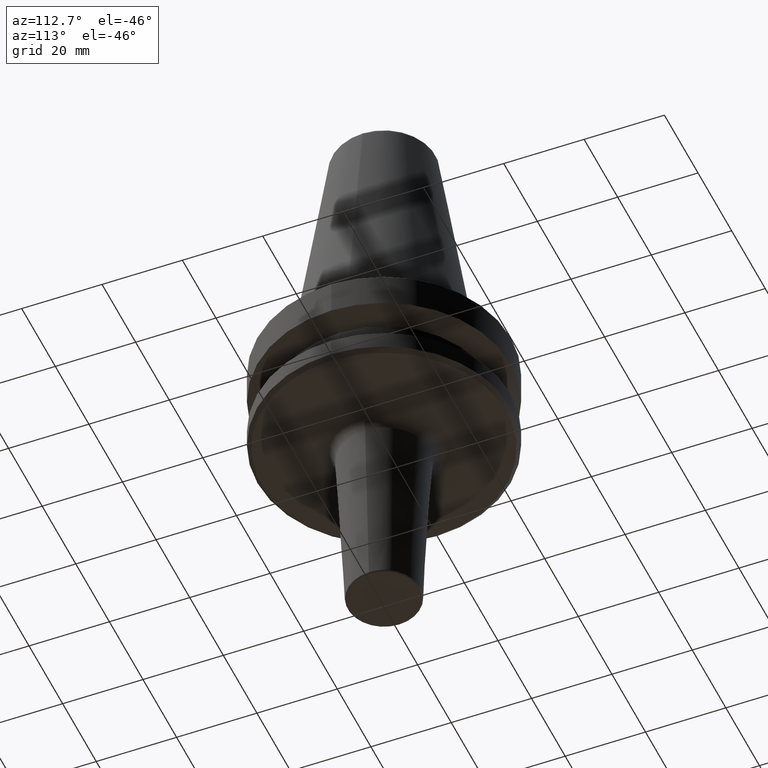
[diagram: clean part render]
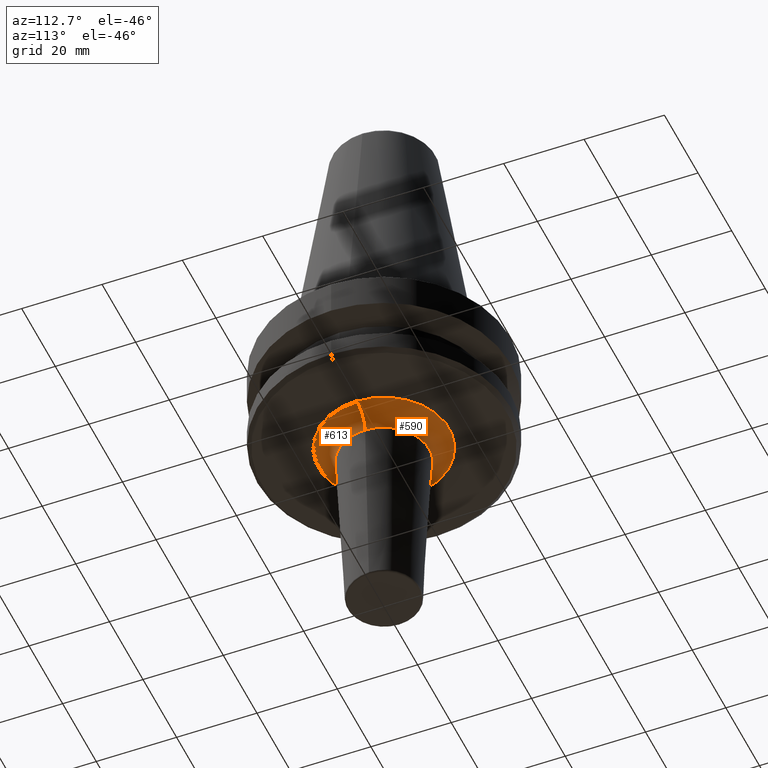
[diagram: same view with one multi-face feature highlighted, each face labeled with its STEP entity id]
A machine part, auxiliary view. The highlighted faces form ONE feature: a constant-radius fillet chain: 2 tangent blend faces with common blend radius 5 mm. The faces share edges in the B-rep.
Their STEP definitions:
[1] entity #590 (Torus):
#14 = CARTESIAN_POINT ( 'NONE',  ( 0.0000000000000000000, 0.0000000000000000000, -92.40000000000806300 ) ) ;
#58 = ORIENTED_EDGE ( 'NONE', *, *, #923, .F. ) ;
#75 = AXIS2_PLACEMENT_3D ( 'NONE', #14, #208, #462 ) ;
#115 = CIRCLE ( 'NONE', #962, 4.999999999999990200 ) ;
#116 = EDGE_CURVE ( 'NONE', #659, #471, #483, .T. ) ;
#168 = DIRECTION ( 'NONE',  ( 1.224646799147353200E-016, 1.000000000000000000, 0.0000000000000000000 ) ) ;
#208 = DIRECTION ( 'NONE',  ( -0.0000000000000000000, -0.0000000000000000000, 1.000000000000000000 ) ) ;
#218 = CIRCLE ( 'NONE', #262, 11.26248440423597500 ) ;
#262 = AXIS2_PLACEMENT_3D ( 'NONE', #990, #385, #679 ) ;
#340 = VERTEX_POINT ( 'NONE', #559 ) ;
#382 = DIRECTION ( 'NONE',  ( -1.000000000000000000, 1.224646799147353700E-016, 0.0000000000000000000 ) ) ;
#385 = DIRECTION ( 'NONE',  ( -0.0000000000000000000, -0.0000000000000000000, 1.000000000000000000 ) ) ;
#390 = ORIENTED_EDGE ( 'NONE', *, *, #938, .T. ) ;
#461 = DIRECTION ( 'NONE',  ( -0.0000000000000000000, -0.0000000000000000000, 1.000000000000000000 ) ) ;
#462 = DIRECTION ( 'NONE',  ( 1.000000000000000000, 0.0000000000000000000, 0.0000000000000000000 ) ) ;
#471 = VERTEX_POINT ( 'NONE', #709 ) ;
#483 = CIRCLE ( 'NONE', #75, 16.25624609862519400 ) ;
#518 = CARTESIAN_POINT ( 'NONE',  ( 0.0000000000000000000, 0.0000000000000000000, -97.40000000000804900 ) ) ;
#528 = VERTEX_POINT ( 'NONE', #928 ) ;
#559 = CARTESIAN_POINT ( 'NONE',  ( 11.26248440423597500, 0.0000000000000000000, -97.15031191528858300 ) ) ;
#560 = FACE_OUTER_BOUND ( 'NONE', #929, .T. ) ;
#590 = ADVANCED_FACE ( 'NONE', ( #560 ), #854, .F. ) ;
#629 = ORIENTED_EDGE ( 'NONE', *, *, #843, .T. ) ;
#646 = CARTESIAN_POINT ( 'NONE',  ( 16.25624609862519800, 0.0000000000000000000, -97.40000000000804900 ) ) ;
#659 = VERTEX_POINT ( 'NONE', #728 ) ;
#679 = DIRECTION ( 'NONE',  ( 1.000000000000000000, 0.0000000000000000000, 0.0000000000000000000 ) ) ;
#709 = CARTESIAN_POINT ( 'NONE',  ( -16.25624609862519400, 1.990815975083299200E-015, -92.40000000000806300 ) ) ;
#728 = CARTESIAN_POINT ( 'NONE',  ( 16.25624609862519400, 0.0000000000000000000, -92.40000000000806300 ) ) ;
#802 = DIRECTION ( 'NONE',  ( 1.000000000000000000, 0.0000000000000000000, 0.0000000000000000000 ) ) ;
#843 = EDGE_CURVE ( 'NONE', #340, #528, #218, .T. ) ;
#854 = TOROIDAL_SURFACE ( 'NONE', #1054, 16.25624609862519800, 4.999999999999994700 ) ;
#886 = ORIENTED_EDGE ( 'NONE', *, *, #116, .F. ) ;
#887 = DIRECTION ( 'NONE',  ( 0.0000000000000000000, 0.0000000000000000000, -1.000000000000000000 ) ) ;
#906 = AXIS2_PLACEMENT_3D ( 'NONE', #960, #168, #382 ) ;
#923 = EDGE_CURVE ( 'NONE', #471, #528, #966, .T. ) ;
#928 = CARTESIAN_POINT ( 'NONE',  ( -11.26248440423597500, 1.685036261346378000E-015, -97.15031191528858300 ) ) ;
#929 = EDGE_LOOP ( 'NONE', ( #58, #886, #390, #629 ) ) ;
#938 = EDGE_CURVE ( 'NONE', #659, #340, #115, .T. ) ;
#960 = CARTESIAN_POINT ( 'NONE',  ( -16.25624609862519800, 1.990815975083299600E-015, -97.40000000000804900 ) ) ;
#962 = AXIS2_PLACEMENT_3D ( 'NONE', #646, #1051, #887 ) ;
#966 = CIRCLE ( 'NONE', #906, 4.999999999999993800 ) ;
#990 = CARTESIAN_POINT ( 'NONE',  ( 0.0000000000000000000, 0.0000000000000000000, -97.15031191528858300 ) ) ;
#1051 = DIRECTION ( 'NONE',  ( 0.0000000000000000000, -1.000000000000000000, 0.0000000000000000000 ) ) ;
#1054 = AXIS2_PLACEMENT_3D ( 'NONE', #518, #461, #802 ) ;
[2] entity #613 (Torus):
#22 = CARTESIAN_POINT ( 'NONE',  ( 0.0000000000000000000, 0.0000000000000000000, -92.40000000000806300 ) ) ;
#23 = ORIENTED_EDGE ( 'NONE', *, *, #923, .T. ) ;
#44 = ORIENTED_EDGE ( 'NONE', *, *, #938, .F. ) ;
#49 = EDGE_CURVE ( 'NONE', #471, #659, #140, .T. ) ;
#88 = CARTESIAN_POINT ( 'NONE',  ( 0.0000000000000000000, 0.0000000000000000000, -97.40000000000804900 ) ) ;
#115 = CIRCLE ( 'NONE', #962, 4.999999999999990200 ) ;
#135 = TOROIDAL_SURFACE ( 'NONE', #183, 16.25624609862519800, 4.999999999999994700 ) ;
#140 = CIRCLE ( 'NONE', #177, 16.25624609862519400 ) ;
#168 = DIRECTION ( 'NONE',  ( 1.224646799147353200E-016, 1.000000000000000000, 0.0000000000000000000 ) ) ;
#177 = AXIS2_PLACEMENT_3D ( 'NONE', #22, #794, #644 ) ;
#183 = AXIS2_PLACEMENT_3D ( 'NONE', #88, #718, #845 ) ;
#221 = ORIENTED_EDGE ( 'NONE', *, *, #726, .T. ) ;
#253 = CIRCLE ( 'NONE', #614, 11.26248440423597500 ) ;
#305 = DIRECTION ( 'NONE',  ( 1.000000000000000000, 0.0000000000000000000, 0.0000000000000000000 ) ) ;
#340 = VERTEX_POINT ( 'NONE', #559 ) ;
#382 = DIRECTION ( 'NONE',  ( -1.000000000000000000, 1.224646799147353700E-016, 0.0000000000000000000 ) ) ;
#405 = DIRECTION ( 'NONE',  ( -0.0000000000000000000, -0.0000000000000000000, 1.000000000000000000 ) ) ;
#471 = VERTEX_POINT ( 'NONE', #709 ) ;
#526 = EDGE_LOOP ( 'NONE', ( #901, #23, #221, #44 ) ) ;
#528 = VERTEX_POINT ( 'NONE', #928 ) ;
#559 = CARTESIAN_POINT ( 'NONE',  ( 11.26248440423597500, 0.0000000000000000000, -97.15031191528858300 ) ) ;
#613 = ADVANCED_FACE ( 'NONE', ( #762 ), #135, .F. ) ;
#614 = AXIS2_PLACEMENT_3D ( 'NONE', #837, #405, #305 ) ;
#644 = DIRECTION ( 'NONE',  ( 1.000000000000000000, 0.0000000000000000000, 0.0000000000000000000 ) ) ;
#646 = CARTESIAN_POINT ( 'NONE',  ( 16.25624609862519800, 0.0000000000000000000, -97.40000000000804900 ) ) ;
#659 = VERTEX_POINT ( 'NONE', #728 ) ;
#709 = CARTESIAN_POINT ( 'NONE',  ( -16.25624609862519400, 1.990815975083299200E-015, -92.40000000000806300 ) ) ;
#718 = DIRECTION ( 'NONE',  ( -0.0000000000000000000, -0.0000000000000000000, 1.000000000000000000 ) ) ;
#726 = EDGE_CURVE ( 'NONE', #528, #340, #253, .T. ) ;
#728 = CARTESIAN_POINT ( 'NONE',  ( 16.25624609862519400, 0.0000000000000000000, -92.40000000000806300 ) ) ;
#762 = FACE_OUTER_BOUND ( 'NONE', #526, .T. ) ;
#794 = DIRECTION ( 'NONE',  ( -0.0000000000000000000, -0.0000000000000000000, 1.000000000000000000 ) ) ;
#837 = CARTESIAN_POINT ( 'NONE',  ( 0.0000000000000000000, 0.0000000000000000000, -97.15031191528858300 ) ) ;
#845 = DIRECTION ( 'NONE',  ( 1.000000000000000000, 0.0000000000000000000, 0.0000000000000000000 ) ) ;
#887 = DIRECTION ( 'NONE',  ( 0.0000000000000000000, 0.0000000000000000000, -1.000000000000000000 ) ) ;
#901 = ORIENTED_EDGE ( 'NONE', *, *, #49, .F. ) ;
#906 = AXIS2_PLACEMENT_3D ( 'NONE', #960, #168, #382 ) ;
#923 = EDGE_CURVE ( 'NONE', #471, #528, #966, .T. ) ;
#928 = CARTESIAN_POINT ( 'NONE',  ( -11.26248440423597500, 1.685036261346378000E-015, -97.15031191528858300 ) ) ;
#938 = EDGE_CURVE ( 'NONE', #659, #340, #115, .T. ) ;
#960 = CARTESIAN_POINT ( 'NONE',  ( -16.25624609862519800, 1.990815975083299600E-015, -97.40000000000804900 ) ) ;
#962 = AXIS2_PLACEMENT_3D ( 'NONE', #646, #1051, #887 ) ;
#966 = CIRCLE ( 'NONE', #906, 4.999999999999993800 ) ;
#1051 = DIRECTION ( 'NONE',  ( 0.0000000000000000000, -1.000000000000000000, 0.0000000000000000000 ) ) ;